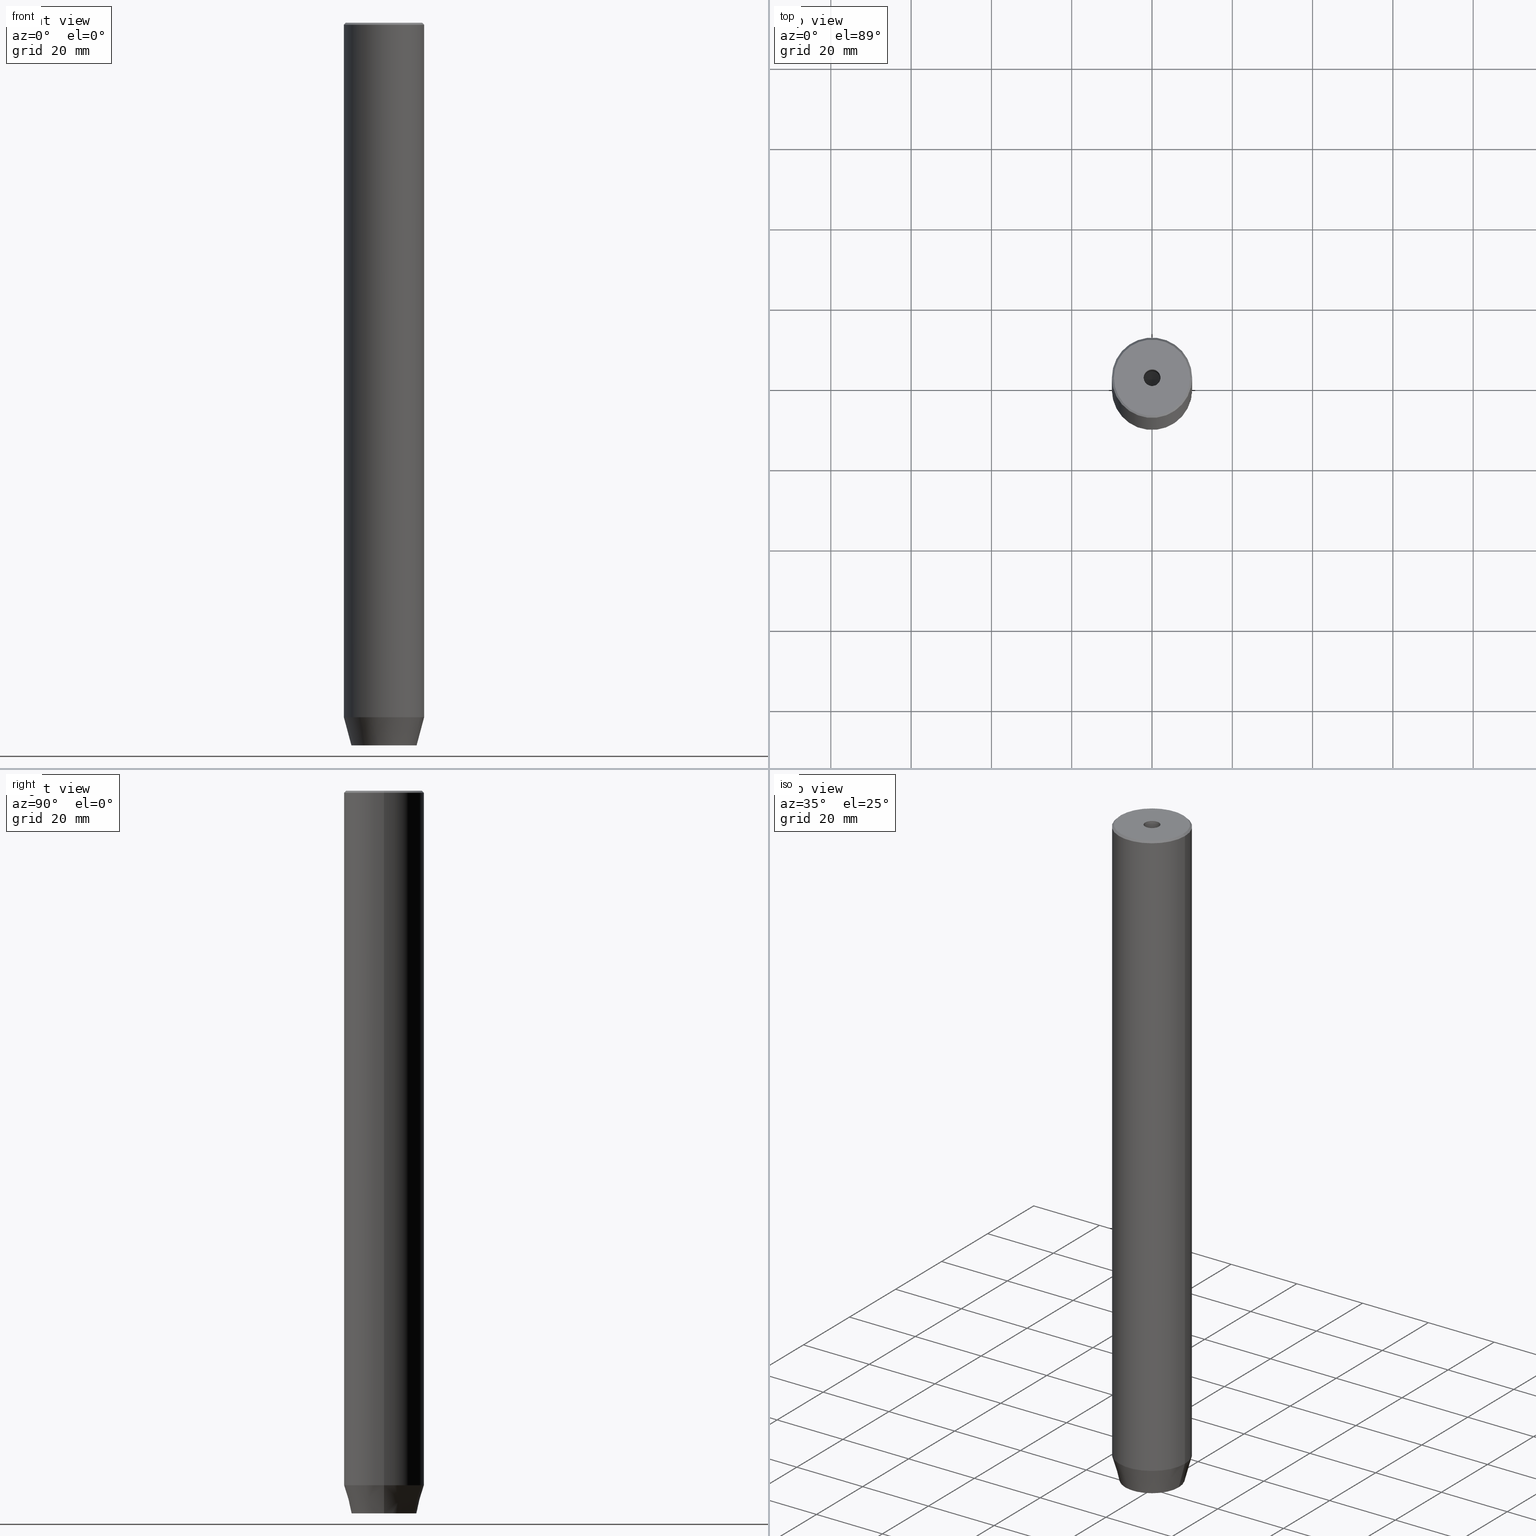
[diagram: canonical four-view strip — front | top / right | iso, engineering-drawing reading convention]
A machine part, canonical four-view strip (front | top / right | iso — engineering-drawing reading convention). The complete STEP part file that produces these views, byte-faithful:
ISO-10303-21;
HEADER;
FILE_DESCRIPTION (( 'STEP AP203' ),
    '1' );
FILE_NAME ('9600.STEP',
    '2024-01-02T19:03:58',
    ( '' ),
    ( '' ),
    'SwSTEP 2.0',
    'SolidWorks 2019',
    '' );
FILE_SCHEMA (( 'CONFIG_CONTROL_DESIGN' ));
ENDSEC;

DATA;
#1 = VERTEX_POINT ( 'NONE', #112 ) ;
#2 = DIRECTION ( 'NONE',  ( -0.000000000000000000, -0.000000000000000000, -1.000000000000000000 ) ) ;
#3 = PLANE ( 'NONE',  #270 ) ;
#4 = VERTEX_POINT ( 'NONE', #150 ) ;
#5 = DIRECTION ( 'NONE',  ( 0.000000000000000000, -1.000000000000000000, 0.000000000000000000 ) ) ;
#6 = CARTESIAN_POINT ( 'NONE',  ( 4.000000000000000000, 2.309401076758503368, -177.1999999999999886 ) ) ;
#7 = VERTEX_POINT ( 'NONE', #407 ) ;
#8 = ORIENTED_EDGE ( 'NONE', *, *, #79, .F. ) ;
#9 = EDGE_LOOP ( 'NONE', ( #374, #303 ) ) ;
#10 = CARTESIAN_POINT ( 'NONE',  ( 0.000000000000000000, 0.000000000000000000, 0.000000000000000000 ) ) ;
#11 = FACE_OUTER_BOUND ( 'NONE', #9, .T. ) ;
#12 = LINE ( 'NONE', #391, #420 ) ;
#13 = AXIS2_PLACEMENT_3D ( 'NONE', #10, #389, #154 ) ;
#14 = DIRECTION ( 'NONE',  ( -0.000000000000000000, -0.000000000000000000, 1.000000000000000000 ) ) ;
#15 = ORIENTED_EDGE ( 'NONE', *, *, #583, .F. ) ;
#16 = CARTESIAN_POINT ( 'NONE',  ( 0.000000000000000000, 0.000000000000000000, -1.990051048614449116E-16 ) ) ;
#17 = ORIENTED_EDGE ( 'NONE', *, *, #261, .T. ) ;
#18 = ADVANCED_FACE ( 'NONE', ( #580 ), #219, .F. ) ;
#19 = FACE_OUTER_BOUND ( 'NONE', #235, .T. ) ;
#20 = ORIENTED_EDGE ( 'NONE', *, *, #93, .F. ) ;
#21 = COORDINATED_UNIVERSAL_TIME_OFFSET ( 1, 0, .AHEAD. ) ;
#22 = DIRECTION ( 'NONE',  ( -0.000000000000000000, -0.000000000000000000, 1.000000000000000000 ) ) ;
#23 = EDGE_LOOP ( 'NONE', ( #419, #431, #485, #15 ) ) ;
#24 = DIRECTION ( 'NONE',  ( -0.000000000000000000, -0.000000000000000000, 1.000000000000000000 ) ) ;
#25 = PERSON_AND_ORGANIZATION ( #45, #406 ) ;
#26 = PLANE ( 'NONE',  #141 ) ;
#27 = AXIS2_PLACEMENT_3D ( 'NONE', #203, #399, #163 ) ;
#28 = VECTOR ( 'NONE', #46, 1000.000000000000114 ) ;
#29 = PERSON_AND_ORGANIZATION_ROLE ( 'creator' ) ;
#30 = EDGE_CURVE ( 'NONE', #92, #304, #586, .T. ) ;
#31 = CARTESIAN_POINT ( 'NONE',  ( -4.000000000000000000, 0.000000000000000000, -177.1999999999999886 ) ) ;
#32 = COORDINATED_UNIVERSAL_TIME_OFFSET ( 1, 0, .AHEAD. ) ;
#33 = DIRECTION ( 'NONE',  ( -0.000000000000000000, -0.000000000000000000, 1.000000000000000000 ) ) ;
#34 = DIRECTION ( 'NONE',  ( -0.000000000000000000, -0.000000000000000000, 1.000000000000000000 ) ) ;
#35 = APPROVAL_ROLE ( '' ) ;
#36 = DIRECTION ( 'NONE',  ( -0.000000000000000000, -0.000000000000000000, -1.000000000000000000 ) ) ;
#37 = VECTOR ( 'NONE', #2, 1000.000000000000000 ) ;
#38 = CARTESIAN_POINT ( 'NONE',  ( -8.124355652982135467, 1.109796706851640556E-15, -180.0000000000000000 ) ) ;
#39 = EDGE_CURVE ( 'NONE', #349, #92, #42, .T. ) ;
#40 =( NAMED_UNIT ( * ) SI_UNIT ( $, .STERADIAN. ) SOLID_ANGLE_UNIT ( ) );
#41 = FACE_OUTER_BOUND ( 'NONE', #288, .T. ) ;
#42 = LINE ( 'NONE', #335, #517 ) ;
#43 = VECTOR ( 'NONE', #322, 1000.000000000000114 ) ;
#44 = ADVANCED_FACE ( 'NONE', ( #59 ), #68, .F. ) ;
#45 = PERSON ( 'NEUR�EN�', 'NEUR�EN�', 'NEUR�EN�', ('NEUR�EN�'), ('NEUR�EN�'), ('NEUR�EN�') ) ;
#46 = DIRECTION ( 'NONE',  ( -0.8660254037844384856, 0.5000000000000002220, 0.000000000000000000 ) ) ;
#47 = LINE ( 'NONE', #53, #175 ) ;
#48 = LINE ( 'NONE', #333, #409 ) ;
#49 = AXIS2_PLACEMENT_3D ( 'NONE', #400, #22, #568 ) ;
#50 = EDGE_CURVE ( 'NONE', #304, #307, #266, .T. ) ;
#51 = FACE_OUTER_BOUND ( 'NONE', #555, .T. ) ;
#52 = DIRECTION ( 'NONE',  ( 0.000000000000000000, 0.000000000000000000, -1.000000000000000000 ) ) ;
#53 = CARTESIAN_POINT ( 'NONE',  ( 2.000000000000000888, -3.464101615137754386, -180.0000000000000000 ) ) ;
#54 = ORIENTED_EDGE ( 'NONE', *, *, #410, .F. ) ;
#55 = ORIENTED_EDGE ( 'NONE', *, *, #168, .T. ) ;
#56 = CARTESIAN_POINT ( 'NONE',  ( 0.000000000000000000, 0.000000000000000000, -180.0000000000000000 ) ) ;
#57 = EDGE_LOOP ( 'NONE', ( #572, #494, #514, #515 ) ) ;
#58 = LINE ( 'NONE', #509, #199 ) ;
#59 = FACE_OUTER_BOUND ( 'NONE', #90, .T. ) ;
#60 = ORIENTED_EDGE ( 'NONE', *, *, #153, .T. ) ;
#61 = ADVANCED_FACE ( 'NONE', ( #348 ), #241, .T. ) ;
#62 = CIRCLE ( 'NONE', #273, 2.099999999999995648 ) ;
#63 = CARTESIAN_POINT ( 'NONE',  ( -2.000000000000000000, 3.464101615137754830, -180.0000000000000000 ) ) ;
#64 = ORIENTED_EDGE ( 'NONE', *, *, #422, .T. ) ;
#65 = DIRECTION ( 'NONE',  ( 1.000000000000000000, 0.000000000000000000, 0.000000000000000000 ) ) ;
#66 = CARTESIAN_POINT ( 'NONE',  ( 0.000000000000000000, 0.000000000000000000, 0.000000000000000000 ) ) ;
#67 = ORIENTED_EDGE ( 'NONE', *, *, #272, .F. ) ;
#68 = PLANE ( 'NONE',  #468 ) ;
#69 = CARTESIAN_POINT ( 'NONE',  ( -4.000000000000000000, 0.000000000000000000, -180.0000000000000000 ) ) ;
#70 = ORIENTED_EDGE ( 'NONE', *, *, #196, .F. ) ;
#71 = APPROVAL_DATE_TIME ( #316, #486 ) ;
#72 = DIRECTION ( 'NONE',  ( -0.000000000000000000, -0.000000000000000000, 1.000000000000000000 ) ) ;
#73 = EDGE_CURVE ( 'NONE', #387, #92, #81, .T. ) ;
#74 = AXIS2_PLACEMENT_3D ( 'NONE', #183, #376, #469 ) ;
#75 = CALENDAR_DATE ( 2024, 2, 1 ) ;
#76 = CALENDAR_DATE ( 2024, 2, 1 ) ;
#77 = PERSON_AND_ORGANIZATION ( #45, #406 ) ;
#78 = APPLICATION_CONTEXT ( 'configuration controlled 3d designs of mechanical parts and assemblies' ) ;
#79 = EDGE_CURVE ( 'NONE', #575, #560, #356, .T. ) ;
#80 = FACE_OUTER_BOUND ( 'NONE', #57, .T. ) ;
#81 = CIRCLE ( 'NONE', #27, 2.099999999999995648 ) ;
#82 = LINE ( 'NONE', #365, #413 ) ;
#83 = CIRCLE ( 'NONE', #109, 10.00000000000000000 ) ;
#84 = CC_DESIGN_PERSON_AND_ORGANIZATION_ASSIGNMENT ( #25, #210, ( #496 ) ) ;
#85 = LINE ( 'NONE', #503, #242 ) ;
#86 = CYLINDRICAL_SURFACE ( 'NONE', #123, 2.099999999999996980 ) ;
#87 = EDGE_CURVE ( 'NONE', #246, #397, #323, .T. ) ;
#88 = DIRECTION ( 'NONE',  ( 1.000000000000000000, 0.000000000000000000, 0.000000000000000000 ) ) ;
#89 = CONICAL_SURFACE ( 'NONE', #411, 9.500000000000008882, 0.7853981633974412846 ) ;
#90 = EDGE_LOOP ( 'NONE', ( #17, #250, #54, #358 ) ) ;
#91 = DIRECTION ( 'NONE',  ( -0.8660254037844385966, -0.4999999999999999445, 0.000000000000000000 ) ) ;
#92 = VERTEX_POINT ( 'NONE', #156 ) ;
#93 = EDGE_CURVE ( 'NONE', #397, #1, #368, .T. ) ;
#94 = ORIENTED_EDGE ( 'NONE', *, *, #583, .T. ) ;
#95 = DIRECTION ( 'NONE',  ( 0.8660254037844387076, 0.5000000000000001110, 0.000000000000000000 ) ) ;
#96 = DIRECTION ( 'NONE',  ( -0.000000000000000000, -0.000000000000000000, 1.000000000000000000 ) ) ;
#97 = VECTOR ( 'NONE', #558, 1000.000000000000000 ) ;
#98 = LINE ( 'NONE', #479, #357 ) ;
#99 = CARTESIAN_POINT ( 'NONE',  ( 0.000000000000000000, 0.000000000000000000, -25.00000000000000000 ) ) ;
#100 = CARTESIAN_POINT ( 'NONE',  ( -9.500000000000008882, 0.000000000000000000, 0.000000000000000000 ) ) ;
#101 = EDGE_CURVE ( 'NONE', #524, #7, #432, .T. ) ;
#102 = EDGE_LOOP ( 'NONE', ( #164, #94, #301, #434 ) ) ;
#103 = CARTESIAN_POINT ( 'NONE',  ( 0.000000000000000000, 0.000000000000000000, 0.000000000000000000 ) ) ;
#104 = LINE ( 'NONE', #244, #551 ) ;
#105 = DIRECTION ( 'NONE',  ( 0.8660254037844384856, 0.5000000000000002220, 0.000000000000000000 ) ) ;
#106 = EDGE_LOOP ( 'NONE', ( #535, #530, #160 ) ) ;
#107 = DIRECTION ( 'NONE',  ( 1.000000000000000000, 0.000000000000000000, 0.000000000000000000 ) ) ;
#108 = DATE_AND_TIME ( #536, #562 ) ;
#109 = AXIS2_PLACEMENT_3D ( 'NONE', #302, #505, #88 ) ;
#110 = CARTESIAN_POINT ( 'NONE',  ( 9.500000000000008882, 1.163414459189986668E-15, 0.000000000000000000 ) ) ;
#111 = FACE_OUTER_BOUND ( 'NONE', #276, .T. ) ;
#112 = CARTESIAN_POINT ( 'NONE',  ( 10.00000000000000000, 0.000000000000000000, -0.4999999999999987232 ) ) ;
#113 = ORIENTED_EDGE ( 'NONE', *, *, #181, .F. ) ;
#114 = CARTESIAN_POINT ( 'NONE',  ( 0.000000000000000000, 0.000000000000000000, 0.000000000000000000 ) ) ;
#115 = VERTEX_POINT ( 'NONE', #556 ) ;
#116 = ORIENTED_EDGE ( 'NONE', *, *, #79, .T. ) ;
#117 = VERTEX_POINT ( 'NONE', #277 ) ;
#118 = ORIENTED_EDGE ( 'NONE', *, *, #136, .F. ) ;
#119 = EDGE_CURVE ( 'NONE', #124, #238, #340, .T. ) ;
#120 = PERSON_AND_ORGANIZATION ( #45, #406 ) ;
#121 = CARTESIAN_POINT ( 'NONE',  ( -10.00000000000000000, 1.224646799147353256E-15, 0.000000000000000000 ) ) ;
#122 =( NAMED_UNIT ( * ) PLANE_ANGLE_UNIT ( ) SI_UNIT ( $, .RADIAN. ) );
#123 = AXIS2_PLACEMENT_3D ( 'NONE', #224, #456, #364 ) ;
#124 = VERTEX_POINT ( 'NONE', #100 ) ;
#125 = LINE ( 'NONE', #444, #470 ) ;
#126 = LINE ( 'NONE', #69, #362 ) ;
#127 = CARTESIAN_POINT ( 'NONE',  ( 4.000000000000000000, 2.309401076758503368, -177.1999999999999886 ) ) ;
#128 = CARTESIAN_POINT ( 'NONE',  ( 2.168404344971008868E-16, 4.618802153517005848, -180.0000000000000000 ) ) ;
#129 = EDGE_CURVE ( 'NONE', #352, #524, #417, .T. ) ;
#130 = DIRECTION ( 'NONE',  ( -0.000000000000000000, -0.000000000000000000, 1.000000000000000000 ) ) ;
#131 = SHAPE_DEFINITION_REPRESENTATION ( #487, #437 ) ;
#132 = FACE_OUTER_BOUND ( 'NONE', #23, .T. ) ;
#133 = APPLICATION_PROTOCOL_DEFINITION ( 'international standard', 'config_control_design', 1994, #78 ) ;
#134 = AXIS2_PLACEMENT_3D ( 'NONE', #398, #72, #162 ) ;
#135 = CARTESIAN_POINT ( 'NONE',  ( 2.099999999999995648, 0.000000000000000000, -25.00000000000000000 ) ) ;
#136 = EDGE_CURVE ( 'NONE', #477, #143, #463, .T. ) ;
#137 = CARTESIAN_POINT ( 'NONE',  ( 0.000000000000000000, 8.124355652982135467, -180.0000000000000000 ) ) ;
#138 = CC_DESIGN_DATE_AND_TIME_ASSIGNMENT ( #108, #360, ( #371 ) ) ;
#139 = CARTESIAN_POINT ( 'NONE',  ( 0.000000000000000000, 0.000000000000000000, 0.000000000000000000 ) ) ;
#140 = ORIENTED_EDGE ( 'NONE', *, *, #153, .F. ) ;
#141 = AXIS2_PLACEMENT_3D ( 'NONE', #308, #525, #279 ) ;
#142 = DIRECTION ( 'NONE',  ( -0.000000000000000000, -0.000000000000000000, -1.000000000000000000 ) ) ;
#143 = VERTEX_POINT ( 'NONE', #467 ) ;
#144 = CC_DESIGN_PERSON_AND_ORGANIZATION_ASSIGNMENT ( #77, #29, ( #247 ) ) ;
#145 = ORIENTED_EDGE ( 'NONE', *, *, #225, .F. ) ;
#146 = CARTESIAN_POINT ( 'NONE',  ( 4.000000000000000000, -2.309401076758502480, -180.0000000000000000 ) ) ;
#147 = FACE_OUTER_BOUND ( 'NONE', #298, .T. ) ;
#148 = PRODUCT_RELATED_PRODUCT_CATEGORY ( 'detail', '', ( #526 ) ) ;
#149 = AXIS2_PLACEMENT_3D ( 'NONE', #328, #344, #188 ) ;
#150 = CARTESIAN_POINT ( 'NONE',  ( 4.000000000000000000, -2.309401076758502480, -177.1999999999999886 ) ) ;
#151 = ORIENTED_EDGE ( 'NONE', *, *, #73, .T. ) ;
#152 = VERTEX_POINT ( 'NONE', #146 ) ;
#153 = EDGE_CURVE ( 'NONE', #115, #117, #549, .T. ) ;
#154 = DIRECTION ( 'NONE',  ( -1.000000000000000000, 0.000000000000000000, 0.000000000000000000 ) ) ;
#155 = EDGE_LOOP ( 'NONE', ( #402, #462, #197, #201 ) ) ;
#156 = CARTESIAN_POINT ( 'NONE',  ( -2.099999999999995648, 2.571758278209436040E-16, -25.00000000000000000 ) ) ;
#157 = DIRECTION ( 'NONE',  ( 0.000000000000000000, 0.000000000000000000, -1.000000000000000000 ) ) ;
#158 = DATE_AND_TIME ( #215, #223 ) ;
#159 = APPLICATION_PROTOCOL_DEFINITION ( 'international standard', 'config_control_design', 1994, #321 ) ;
#160 = ORIENTED_EDGE ( 'NONE', *, *, #511, .T. ) ;
#161 = DIRECTION ( 'NONE',  ( 0.8660254037844385966, -0.5000000000000001110, 0.000000000000000000 ) ) ;
#162 = DIRECTION ( 'NONE',  ( 1.000000000000000000, 0.000000000000000000, 0.000000000000000000 ) ) ;
#163 = DIRECTION ( 'NONE',  ( 1.000000000000000000, 0.000000000000000000, 0.000000000000000000 ) ) ;
#164 = ORIENTED_EDGE ( 'NONE', *, *, #87, .F. ) ;
#165 = VECTOR ( 'NONE', #338, 1000.000000000000000 ) ;
#166 = AXIS2_PLACEMENT_3D ( 'NONE', #232, #198, #91 ) ;
#167 = COORDINATED_UNIVERSAL_TIME_OFFSET ( 1, 0, .AHEAD. ) ;
#168 = EDGE_CURVE ( 'NONE', #477, #472, #553, .T. ) ;
#169 = APPROVAL_PERSON_ORGANIZATION ( #573, #190, #35 ) ;
#170 = PERSON_AND_ORGANIZATION ( #45, #406 ) ;
#171 = CC_DESIGN_PERSON_AND_ORGANIZATION_ASSIGNMENT ( #170, #527, ( #371 ) ) ;
#172 = LINE ( 'NONE', #361, #491 ) ;
#173 = ORIENTED_EDGE ( 'NONE', *, *, #359, .T. ) ;
#174 = DIRECTION ( 'NONE',  ( -0.2588190451025213501, 3.169619151431772337E-17, 0.9659258262890680902 ) ) ;
#175 = VECTOR ( 'NONE', #195, 1000.000000000000114 ) ;
#176 = EDGE_CURVE ( 'NONE', #341, #560, #516, .T. ) ;
#177 = APPROVAL_DATE_TIME ( #262, #289 ) ;
#178 = CARTESIAN_POINT ( 'NONE',  ( 10.00000000000000000, 0.000000000000000000, 0.000000000000000000 ) ) ;
#179 = LINE ( 'NONE', #367, #500 ) ;
#180 = DIRECTION ( 'NONE',  ( 0.000000000000000000, 0.000000000000000000, -1.000000000000000000 ) ) ;
#181 = EDGE_CURVE ( 'NONE', #4, #152, #58, .T. ) ;
#182 = DIRECTION ( 'NONE',  ( -0.000000000000000000, 0.000000000000000000, -1.000000000000000000 ) ) ;
#183 = CARTESIAN_POINT ( 'NONE',  ( 0.000000000000000000, 0.000000000000000000, 0.000000000000000000 ) ) ;
#184 = DIRECTION ( 'NONE',  ( 1.000000000000000000, 0.000000000000000000, 0.000000000000000000 ) ) ;
#185 = ORIENTED_EDGE ( 'NONE', *, *, #412, .F. ) ;
#186 = ADVANCED_FACE ( 'NONE', ( #51 ), #476, .F. ) ;
#187 = CIRCLE ( 'NONE', #49, 8.124355652982135467 ) ;
#188 = DIRECTION ( 'NONE',  ( 1.000000000000000000, 0.000000000000000000, 0.000000000000000000 ) ) ;
#189 = ORIENTED_EDGE ( 'NONE', *, *, #339, .F. ) ;
#190 = APPROVAL ( #443, 'NEUR�EN�' ) ;
#191 = ORIENTED_EDGE ( 'NONE', *, *, #373, .T. ) ;
#192 = ORIENTED_EDGE ( 'NONE', *, *, #384, .T. ) ;
#193 = LINE ( 'NONE', #385, #97 ) ;
#194 = FACE_OUTER_BOUND ( 'NONE', #537, .T. ) ;
#195 = DIRECTION ( 'NONE',  ( -0.8660254037844384856, -0.5000000000000002220, 0.000000000000000000 ) ) ;
#196 = EDGE_CURVE ( 'NONE', #560, #152, #237, .T. ) ;
#197 = ORIENTED_EDGE ( 'NONE', *, *, #50, .T. ) ;
#198 = DIRECTION ( 'NONE',  ( -0.5000000000000000000, 0.8660254037844387076, 0.000000000000000000 ) ) ;
#199 = VECTOR ( 'NONE', #142, 1000.000000000000000 ) ;
#200 = ORIENTED_EDGE ( 'NONE', *, *, #453, .T. ) ;
#201 = ORIENTED_EDGE ( 'NONE', *, *, #366, .F. ) ;
#202 = CARTESIAN_POINT ( 'NONE',  ( -2.099999999999998757, 2.571758278209440478E-16, -1.990051048614449116E-16 ) ) ;
#203 = CARTESIAN_POINT ( 'NONE',  ( 0.000000000000000000, 0.000000000000000000, -25.00000000000000000 ) ) ;
#204 = EDGE_LOOP ( 'NONE', ( #314, #425, #251, #189 ) ) ;
#205 = CARTESIAN_POINT ( 'NONE',  ( 2.099999999999995648, 0.000000000000000000, -25.00000000000000000 ) ) ;
#206 = CARTESIAN_POINT ( 'NONE',  ( 0.000000000000000000, 0.000000000000000000, -177.1999999999999886 ) ) ;
#207 = EDGE_CURVE ( 'NONE', #115, #263, #193, .T. ) ;
#208 = AXIS2_PLACEMENT_3D ( 'NONE', #31, #499, #416 ) ;
#209 = AXIS2_PLACEMENT_3D ( 'NONE', #268, #180, #495 ) ;
#210 = PERSON_AND_ORGANIZATION_ROLE ( 'design_supplier' ) ;
#211 = COORDINATED_UNIVERSAL_TIME_OFFSET ( 1, 0, .AHEAD. ) ;
#212 = APPROVAL_STATUS ( 'not_yet_approved' ) ;
#213 = ADVANCED_FACE ( 'NONE', ( #240 ), #227, .T. ) ;
#214 = DIRECTION ( 'NONE',  ( -1.000000000000000000, 0.000000000000000000, -0.000000000000000000 ) ) ;
#215 = CALENDAR_DATE ( 2024, 2, 1 ) ;
#216 = DIRECTION ( 'NONE',  ( -0.000000000000000000, -0.000000000000000000, 1.000000000000000000 ) ) ;
#217 = VECTOR ( 'NONE', #130, 1000.000000000000000 ) ;
#218 = LINE ( 'NONE', #135, #43 ) ;
#219 = PLANE ( 'NONE',  #208 ) ;
#220 = CARTESIAN_POINT ( 'NONE',  ( 0.000000000000000000, 0.000000000000000000, -173.0000000000000000 ) ) ;
#221 = ADVANCED_FACE ( 'NONE', ( #561 ), #347, .F. ) ;
#222 = AXIS2_PLACEMENT_3D ( 'NONE', #372, #414, #182 ) ;
#223 = LOCAL_TIME ( 20, 3, 58.00000000000000000, #21 ) ;
#224 = CARTESIAN_POINT ( 'NONE',  ( 0.000000000000000000, 0.000000000000000000, 0.000000000000000000 ) ) ;
#225 = EDGE_CURVE ( 'NONE', #575, #4, #12, .T. ) ;
#226 = CARTESIAN_POINT ( 'NONE',  ( 8.124355652982135467, 0.000000000000000000, -180.0000000000000000 ) ) ;
#227 = CONICAL_SURFACE ( 'NONE', #13, 9.500000000000008882, 0.7853981633974412846 ) ;
#228 = CARTESIAN_POINT ( 'NONE',  ( 10.00000000000000000, 0.000000000000000000, -173.0000000000000000 ) ) ;
#229 = CARTESIAN_POINT ( 'NONE',  ( 0.000000000000000000, 0.000000000000000000, -173.0000000000000000 ) ) ;
#230 = PERSON_AND_ORGANIZATION ( #45, #406 ) ;
#231 =( GEOMETRIC_REPRESENTATION_CONTEXT ( 3 ) GLOBAL_UNCERTAINTY_ASSIGNED_CONTEXT ( ( #454 ) ) GLOBAL_UNIT_ASSIGNED_CONTEXT ( ( #375, #122, #40 ) ) REPRESENTATION_CONTEXT ( 'NONE', 'WORKASPACE' ) );
#232 = CARTESIAN_POINT ( 'NONE',  ( -2.000000000000000000, 3.464101615137754830, -177.1999999999999886 ) ) ;
#233 = DIRECTION ( 'NONE',  ( 1.000000000000000000, 0.000000000000000000, 0.000000000000000000 ) ) ;
#234 = EDGE_CURVE ( 'NONE', #143, #351, #98, .T. ) ;
#235 = EDGE_LOOP ( 'NONE', ( #60, #192, #305, #519, #452, #200 ) ) ;
#236 = EDGE_LOOP ( 'NONE', ( #567, #430, #118, #55 ) ) ;
#237 = LINE ( 'NONE', #428, #446 ) ;
#238 = VERTEX_POINT ( 'NONE', #429 ) ;
#239 = DIRECTION ( 'NONE',  ( 0.5000000000000001110, 0.8660254037844385966, -0.000000000000000000 ) ) ;
#240 = FACE_OUTER_BOUND ( 'NONE', #204, .T. ) ;
#241 = CONICAL_SURFACE ( 'NONE', #403, 10.00000000000000000, 0.2617993877991500740 ) ;
#242 = VECTOR ( 'NONE', #174, 1000.000000000000000 ) ;
#243 = CYLINDRICAL_SURFACE ( 'NONE', #369, 10.00000000000000000 ) ;
#244 = CARTESIAN_POINT ( 'NONE',  ( -2.000000000000000888, -3.464101615137754386, -180.0000000000000000 ) ) ;
#245 = CC_DESIGN_SECURITY_CLASSIFICATION ( #371, ( #496 ) ) ;
#246 = VERTEX_POINT ( 'NONE', #350 ) ;
#247 = PRODUCT_DEFINITION ( 'NEZN�M�', '', #496, #252 ) ;
#248 = DIRECTION ( 'NONE',  ( -0.5000000000000003331, -0.8660254037844385966, 0.000000000000000000 ) ) ;
#249 = FACE_OUTER_BOUND ( 'NONE', #102, .T. ) ;
#250 = ORIENTED_EDGE ( 'NONE', *, *, #168, .F. ) ;
#251 = ORIENTED_EDGE ( 'NONE', *, *, #325, .T. ) ;
#252 = DESIGN_CONTEXT ( 'detailed design', #78, 'design' ) ;
#253 = AXIS2_PLACEMENT_3D ( 'NONE', #285, #157, #107 ) ;
#254 = ORIENTED_EDGE ( 'NONE', *, *, #176, .T. ) ;
#255 = AXIS2_PLACEMENT_3D ( 'NONE', #449, #239, #571 ) ;
#256 = DATE_AND_TIME ( #76, #533 ) ;
#257 = EDGE_LOOP ( 'NONE', ( #254, #8, #346, #332 ) ) ;
#258 = CARTESIAN_POINT ( 'NONE',  ( -10.00000000000000000, 1.224646799147353256E-15, -0.4999999999999987232 ) ) ;
#259 = DIRECTION ( 'NONE',  ( -1.000000000000000000, 0.000000000000000000, -0.000000000000000000 ) ) ;
#260 = DIRECTION ( 'NONE',  ( 1.000000000000000000, 0.000000000000000000, 0.000000000000000000 ) ) ;
#261 = EDGE_CURVE ( 'NONE', #152, #472, #47, .T. ) ;
#262 = DATE_AND_TIME ( #75, #290 ) ;
#263 = VERTEX_POINT ( 'NONE', #386 ) ;
#264 = DATE_TIME_ROLE ( 'creation_date' ) ;
#265 = CARTESIAN_POINT ( 'NONE',  ( 4.336808689942017736E-16, -4.618802153517006737, -180.0000000000000000 ) ) ;
#266 = CIRCLE ( 'NONE', #550, 2.099999999999998757 ) ;
#267 = CALENDAR_DATE ( 2024, 2, 1 ) ;
#268 = CARTESIAN_POINT ( 'NONE',  ( 0.000000000000000000, 0.000000000000000000, -0.4999999999999987232 ) ) ;
#269 = CARTESIAN_POINT ( 'NONE',  ( 0.000000000000000000, 0.000000000000000000, -25.00000000000000000 ) ) ;
#270 = AXIS2_PLACEMENT_3D ( 'NONE', #137, #52, #214 ) ;
#271 = DIRECTION ( 'NONE',  ( -0.000000000000000000, -0.000000000000000000, 1.000000000000000000 ) ) ;
#272 = EDGE_CURVE ( 'NONE', #472, #351, #104, .T. ) ;
#273 = AXIS2_PLACEMENT_3D ( 'NONE', #99, #343, #475 ) ;
#274 = DIRECTION ( 'NONE',  ( 0.8660254037844384856, -0.5000000000000002220, 0.000000000000000000 ) ) ;
#275 = EDGE_CURVE ( 'NONE', #351, #263, #126, .T. ) ;
#276 = EDGE_LOOP ( 'NONE', ( #395, #421, #151 ) ) ;
#277 = CARTESIAN_POINT ( 'NONE',  ( 0.000000000000000000, 4.618802153517006737, -177.1999999999999886 ) ) ;
#278 = CARTESIAN_POINT ( 'NONE',  ( 4.336808689942017736E-16, -4.618802153517006737, -177.1999999999999886 ) ) ;
#279 = DIRECTION ( 'NONE',  ( 1.000000000000000000, 0.000000000000000000, 0.000000000000000000 ) ) ;
#280 = DIRECTION ( 'NONE',  ( 0.000000000000000000, -1.000000000000000000, 0.000000000000000000 ) ) ;
#281 = ADVANCED_FACE ( 'NONE', ( #249 ), #243, .T. ) ;
#282 = FACE_OUTER_BOUND ( 'NONE', #552, .T. ) ;
#283 = CARTESIAN_POINT ( 'NONE',  ( 2.000000000000000444, 3.464101615137754386, -180.0000000000000000 ) ) ;
#284 = DIRECTION ( 'NONE',  ( -1.000000000000000000, 0.000000000000000000, 0.000000000000000000 ) ) ;
#285 = CARTESIAN_POINT ( 'NONE',  ( 0.000000000000000000, 0.000000000000000000, -0.4999999999999987232 ) ) ;
#286 = DIRECTION ( 'NONE',  ( -0.000000000000000000, -0.000000000000000000, -1.000000000000000000 ) ) ;
#287 = ORIENTED_EDGE ( 'NONE', *, *, #275, .F. ) ;
#288 = EDGE_LOOP ( 'NONE', ( #294, #113, #145, #116 ) ) ;
#289 = APPROVAL ( #312, 'NEUR�EN�' ) ;
#290 = LOCAL_TIME ( 20, 3, 58.00000000000000000, #32 ) ;
#291 = CARTESIAN_POINT ( 'NONE',  ( 4.000000000000000000, 2.309401076758503368, -180.0000000000000000 ) ) ;
#292 = ORIENTED_EDGE ( 'NONE', *, *, #309, .F. ) ;
#293 = ORIENTED_EDGE ( 'NONE', *, *, #50, .F. ) ;
#294 = ORIENTED_EDGE ( 'NONE', *, *, #196, .T. ) ;
#295 = DIRECTION ( 'NONE',  ( 1.000000000000000000, 0.000000000000000000, 0.000000000000000000 ) ) ;
#296 = FACE_OUTER_BOUND ( 'NONE', #257, .T. ) ;
#297 = VECTOR ( 'NONE', #95, 999.9999999999998863 ) ;
#298 = EDGE_LOOP ( 'NONE', ( #579, #513 ) ) ;
#299 = SECURITY_CLASSIFICATION_LEVEL ( 'unclassified' ) ;
#300 = ADVANCED_FACE ( 'NONE', ( #296 ), #442, .F. ) ;
#301 = ORIENTED_EDGE ( 'NONE', *, *, #309, .T. ) ;
#302 = CARTESIAN_POINT ( 'NONE',  ( 0.000000000000000000, 0.000000000000000000, -173.0000000000000000 ) ) ;
#303 = ORIENTED_EDGE ( 'NONE', *, *, #393, .T. ) ;
#304 = VERTEX_POINT ( 'NONE', #202 ) ;
#305 = ORIENTED_EDGE ( 'NONE', *, *, #225, .T. ) ;
#306 = DIRECTION ( 'NONE',  ( 0.000000000000000000, 0.000000000000000000, -1.000000000000000000 ) ) ;
#307 = VERTEX_POINT ( 'NONE', #529 ) ;
#308 = CARTESIAN_POINT ( 'NONE',  ( 0.000000000000000000, 0.000000000000000000, 0.000000000000000000 ) ) ;
#309 = EDGE_CURVE ( 'NONE', #7, #1, #498, .T. ) ;
#310 = CLOSED_SHELL ( 'NONE', ( #221, #473, #578, #61, #531, #585, #566, #281, #458, #213, #186, #18, #497, #44, #447, #300, #548, #543, #465 ) ) ;
#311 = VECTOR ( 'NONE', #565, 999.9999999999998863 ) ;
#312 = APPROVAL_STATUS ( 'not_yet_approved' ) ;
#313 = DIRECTION ( 'NONE',  ( -0.000000000000000000, -0.000000000000000000, 1.000000000000000000 ) ) ;
#314 = ORIENTED_EDGE ( 'NONE', *, *, #373, .F. ) ;
#315 = CC_DESIGN_APPROVAL ( #289, ( #371 ) ) ;
#316 = DATE_AND_TIME ( #267, #450 ) ;
#317 = CARTESIAN_POINT ( 'NONE',  ( -6.432287649943602629E-15, 0.000000000000000000, -26.26180729995787999 ) ) ;
#318 = AXIS2_PLACEMENT_3D ( 'NONE', #269, #216, #184 ) ;
#319 = FACE_OUTER_BOUND ( 'NONE', #106, .T. ) ;
#320 = CC_DESIGN_PERSON_AND_ORGANIZATION_ASSIGNMENT ( #230, #427, ( #526 ) ) ;
#321 = APPLICATION_CONTEXT ( 'configuration controlled 3d designs of mechanical parts and assemblies' ) ;
#322 = DIRECTION ( 'NONE',  ( 0.8571673007021108903, 0.000000000000000000, 0.5150380749100565980 ) ) ;
#323 = LINE ( 'NONE', #121, #326 ) ;
#324 = DIRECTION ( 'NONE',  ( -0.8571673007021108903, 1.049727191138616847E-16, 0.5150380749100565980 ) ) ;
#325 = EDGE_CURVE ( 'NONE', #124, #397, #82, .T. ) ;
#326 = VECTOR ( 'NONE', #313, 1000.000000000000000 ) ;
#327 = AXIS2_PLACEMENT_3D ( 'NONE', #206, #306, #259 ) ;
#328 = CARTESIAN_POINT ( 'NONE',  ( 0.000000000000000000, 0.000000000000000000, 0.000000000000000000 ) ) ;
#329 = CC_DESIGN_PERSON_AND_ORGANIZATION_ASSIGNMENT ( #576, #451, ( #496 ) ) ;
#330 = FACE_OUTER_BOUND ( 'NONE', #236, .T. ) ;
#331 = ORIENTED_EDGE ( 'NONE', *, *, #207, .F. ) ;
#332 = ORIENTED_EDGE ( 'NONE', *, *, #520, .T. ) ;
#333 = CARTESIAN_POINT ( 'NONE',  ( 0.000000000000000000, 4.618802153517006737, -177.1999999999999886 ) ) ;
#334 = DIRECTION ( 'NONE',  ( -0.000000000000000000, -0.000000000000000000, 1.000000000000000000 ) ) ;
#335 = CARTESIAN_POINT ( 'NONE',  ( -2.099999999999995648, 2.571758278209436040E-16, -25.00000000000000000 ) ) ;
#336 = MECHANICAL_CONTEXT ( 'NONE', #321, 'mechanical' ) ;
#337 = ORIENTED_EDGE ( 'NONE', *, *, #261, .F. ) ;
#338 = DIRECTION ( 'NONE',  ( 0.2588190451025213501, 0.000000000000000000, 0.9659258262890680902 ) ) ;
#339 = EDGE_CURVE ( 'NONE', #1, #397, #501, .T. ) ;
#340 = CIRCLE ( 'NONE', #149, 9.500000000000008882 ) ;
#341 = VERTEX_POINT ( 'NONE', #128 ) ;
#342 = VECTOR ( 'NONE', #532, 999.9999999999998863 ) ;
#343 = DIRECTION ( 'NONE',  ( -0.000000000000000000, -0.000000000000000000, 1.000000000000000000 ) ) ;
#344 = DIRECTION ( 'NONE',  ( -0.000000000000000000, -0.000000000000000000, 1.000000000000000000 ) ) ;
#345 = CARTESIAN_POINT ( 'NONE',  ( 0.000000000000000000, 0.000000000000000000, -173.0000000000000000 ) ) ;
#346 = ORIENTED_EDGE ( 'NONE', *, *, #384, .F. ) ;
#347 = CYLINDRICAL_SURFACE ( 'NONE', #74, 2.099999999999996980 ) ;
#348 = FACE_OUTER_BOUND ( 'NONE', #466, .T. ) ;
#349 = VERTEX_POINT ( 'NONE', #317 ) ;
#350 = CARTESIAN_POINT ( 'NONE',  ( -10.00000000000000000, 1.224646799147353256E-15, -173.0000000000000000 ) ) ;
#351 = VERTEX_POINT ( 'NONE', #370 ) ;
#352 = VERTEX_POINT ( 'NONE', #38 ) ;
#353 = DIRECTION ( 'NONE',  ( -0.000000000000000000, -0.000000000000000000, -1.000000000000000000 ) ) ;
#354 = DIRECTION ( 'NONE',  ( 0.5000000000000003331, -0.8660254037844385966, 0.000000000000000000 ) ) ;
#355 = EDGE_CURVE ( 'NONE', #349, #387, #218, .T. ) ;
#356 = LINE ( 'NONE', #127, #418 ) ;
#357 = VECTOR ( 'NONE', #286, 1000.000000000000000 ) ;
#358 = ORIENTED_EDGE ( 'NONE', *, *, #181, .T. ) ;
#359 = EDGE_CURVE ( 'NONE', #352, #246, #85, .T. ) ;
#360 = DATE_TIME_ROLE ( 'classification_date' ) ;
#361 = CARTESIAN_POINT ( 'NONE',  ( 2.000000000000000888, -3.464101615137754386, -177.1999999999999886 ) ) ;
#362 = VECTOR ( 'NONE', #534, 1000.000000000000000 ) ;
#363 = DIRECTION ( 'NONE',  ( 1.000000000000000000, 0.000000000000000000, 0.000000000000000000 ) ) ;
#364 = DIRECTION ( 'NONE',  ( 1.000000000000000000, 0.000000000000000000, 0.000000000000000000 ) ) ;
#365 = CARTESIAN_POINT ( 'NONE',  ( -9.500000000000008882, 0.000000000000000000, 0.000000000000000000 ) ) ;
#366 = EDGE_CURVE ( 'NONE', #387, #307, #125, .T. ) ;
#367 = CARTESIAN_POINT ( 'NONE',  ( -4.000000000000000000, 0.000000000000000000, -177.1999999999999886 ) ) ;
#368 = CIRCLE ( 'NONE', #253, 10.00000000000000000 ) ;
#369 = AXIS2_PLACEMENT_3D ( 'NONE', #66, #14, #260 ) ;
#370 = CARTESIAN_POINT ( 'NONE',  ( -4.000000000000000000, -2.309401076758503368, -180.0000000000000000 ) ) ;
#371 = SECURITY_CLASSIFICATION ( '', '', #299 ) ;
#372 = CARTESIAN_POINT ( 'NONE',  ( 4.000000000000000000, 0.000000000000000000, -177.1999999999999886 ) ) ;
#373 = EDGE_CURVE ( 'NONE', #238, #1, #396, .T. ) ;
#374 = ORIENTED_EDGE ( 'NONE', *, *, #119, .T. ) ;
#375 =( LENGTH_UNIT ( ) NAMED_UNIT ( * ) SI_UNIT ( .MILLI., .METRE. ) );
#376 = DIRECTION ( 'NONE',  ( -0.000000000000000000, -0.000000000000000000, 1.000000000000000000 ) ) ;
#377 = CARTESIAN_POINT ( 'NONE',  ( 4.336808689942017736E-16, -4.618802153517006737, -177.1999999999999886 ) ) ;
#378 = DIRECTION ( 'NONE',  ( 1.000000000000000000, 0.000000000000000000, 0.000000000000000000 ) ) ;
#379 = AXIS2_PLACEMENT_3D ( 'NONE', #114, #401, #439 ) ;
#380 = DIRECTION ( 'NONE',  ( 1.000000000000000000, 0.000000000000000000, 0.000000000000000000 ) ) ;
#381 = ORIENTED_EDGE ( 'NONE', *, *, #275, .T. ) ;
#382 = ORIENTED_EDGE ( 'NONE', *, *, #207, .T. ) ;
#383 = CYLINDRICAL_SURFACE ( 'NONE', #581, 10.00000000000000000 ) ;
#384 = EDGE_CURVE ( 'NONE', #117, #575, #577, .T. ) ;
#385 = CARTESIAN_POINT ( 'NONE',  ( -4.000000000000000000, 2.309401076758503368, -177.1999999999999886 ) ) ;
#386 = CARTESIAN_POINT ( 'NONE',  ( -4.000000000000000000, 2.309401076758503368, -180.0000000000000000 ) ) ;
#387 = VERTEX_POINT ( 'NONE', #205 ) ;
#388 = EDGE_LOOP ( 'NONE', ( #381, #331, #488, #481 ) ) ;
#389 = DIRECTION ( 'NONE',  ( 0.000000000000000000, 0.000000000000000000, -1.000000000000000000 ) ) ;
#390 = CARTESIAN_POINT ( 'NONE',  ( 0.000000000000000000, 0.000000000000000000, -1.990051048614449116E-16 ) ) ;
#391 = CARTESIAN_POINT ( 'NONE',  ( 4.000000000000000000, 0.000000000000000000, -177.1999999999999886 ) ) ;
#392 = ORIENTED_EDGE ( 'NONE', *, *, #393, .F. ) ;
#393 = EDGE_CURVE ( 'NONE', #238, #124, #508, .T. ) ;
#394 = EDGE_LOOP ( 'NONE', ( #185, #293 ) ) ;
#395 = ORIENTED_EDGE ( 'NONE', *, *, #39, .F. ) ;
#396 = LINE ( 'NONE', #110, #342 ) ;
#397 = VERTEX_POINT ( 'NONE', #258 ) ;
#398 = CARTESIAN_POINT ( 'NONE',  ( 0.000000000000000000, 0.000000000000000000, -25.00000000000000000 ) ) ;
#399 = DIRECTION ( 'NONE',  ( -0.000000000000000000, -0.000000000000000000, 1.000000000000000000 ) ) ;
#400 = CARTESIAN_POINT ( 'NONE',  ( 0.000000000000000000, 0.000000000000000000, -180.0000000000000000 ) ) ;
#401 = DIRECTION ( 'NONE',  ( -0.000000000000000000, -0.000000000000000000, 1.000000000000000000 ) ) ;
#402 = ORIENTED_EDGE ( 'NONE', *, *, #511, .F. ) ;
#403 = AXIS2_PLACEMENT_3D ( 'NONE', #345, #436, #65 ) ;
#404 = VECTOR ( 'NONE', #471, 1000.000000000000000 ) ;
#405 = DIRECTION ( 'NONE',  ( -0.000000000000000000, -0.000000000000000000, 1.000000000000000000 ) ) ;
#406 = ORGANIZATION ( 'NEUR�EN�', 'NEUR�EN�', '' ) ;
#407 = CARTESIAN_POINT ( 'NONE',  ( 10.00000000000000000, 0.000000000000000000, -173.0000000000000000 ) ) ;
#408 = DIRECTION ( 'NONE',  ( -0.7071067811865425767, 0.000000000000000000, -0.7071067811865525687 ) ) ;
#409 = VECTOR ( 'NONE', #353, 1000.000000000000000 ) ;
#410 = EDGE_CURVE ( 'NONE', #4, #477, #172, .T. ) ;
#411 = AXIS2_PLACEMENT_3D ( 'NONE', #139, #461, #284 ) ;
#412 = EDGE_CURVE ( 'NONE', #307, #304, #518, .T. ) ;
#413 = VECTOR ( 'NONE', #408, 999.9999999999998863 ) ;
#414 = DIRECTION ( 'NONE',  ( 1.000000000000000000, 0.000000000000000000, -0.000000000000000000 ) ) ;
#415 = ORIENTED_EDGE ( 'NONE', *, *, #422, .F. ) ;
#416 = DIRECTION ( 'NONE',  ( 0.000000000000000000, 0.000000000000000000, 1.000000000000000000 ) ) ;
#417 = CIRCLE ( 'NONE', #587, 8.124355652982135467 ) ;
#418 = VECTOR ( 'NONE', #36, 1000.000000000000000 ) ;
#419 = ORIENTED_EDGE ( 'NONE', *, *, #359, .F. ) ;
#420 = VECTOR ( 'NONE', #280, 1000.000000000000000 ) ;
#421 = ORIENTED_EDGE ( 'NONE', *, *, #355, .T. ) ;
#422 = EDGE_CURVE ( 'NONE', #263, #341, #480, .T. ) ;
#423 = CARTESIAN_POINT ( 'NONE',  ( -2.000000000000000000, 3.464101615137754830, -177.1999999999999886 ) ) ;
#424 = DIRECTION ( 'NONE',  ( 1.000000000000000000, 0.000000000000000000, 0.000000000000000000 ) ) ;
#425 = ORIENTED_EDGE ( 'NONE', *, *, #119, .F. ) ;
#426 = CARTESIAN_POINT ( 'NONE',  ( 0.000000000000000000, 0.000000000000000000, 0.000000000000000000 ) ) ;
#427 = PERSON_AND_ORGANIZATION_ROLE ( 'design_owner' ) ;
#428 = CARTESIAN_POINT ( 'NONE',  ( 4.000000000000000000, 0.000000000000000000, -180.0000000000000000 ) ) ;
#429 = CARTESIAN_POINT ( 'NONE',  ( 9.500000000000008882, 1.194030629168669864E-15, 0.000000000000000000 ) ) ;
#430 = ORIENTED_EDGE ( 'NONE', *, *, #234, .F. ) ;
#431 = ORIENTED_EDGE ( 'NONE', *, *, #129, .T. ) ;
#432 = LINE ( 'NONE', #228, #165 ) ;
#433 = EDGE_CURVE ( 'NONE', #7, #246, #83, .T. ) ;
#434 = ORIENTED_EDGE ( 'NONE', *, *, #339, .T. ) ;
#435 = CONICAL_SURFACE ( 'NONE', #134, 2.099999999999995648, 1.029744258676651647 ) ;
#436 = DIRECTION ( 'NONE',  ( -0.000000000000000000, -0.000000000000000000, 1.000000000000000000 ) ) ;
#437 = ADVANCED_BREP_SHAPE_REPRESENTATION ( '9600', ( #506, #574 ), #231 ) ;
#438 = ORIENTED_EDGE ( 'NONE', *, *, #93, .T. ) ;
#439 = DIRECTION ( 'NONE',  ( 1.000000000000000000, 0.000000000000000000, 0.000000000000000000 ) ) ;
#440 = EDGE_LOOP ( 'NONE', ( #415, #287, #67, #337, #70, #460 ) ) ;
#441 = CC_DESIGN_APPROVAL ( #486, ( #247 ) ) ;
#442 = PLANE ( 'NONE',  #255 ) ;
#443 = APPROVAL_STATUS ( 'not_yet_approved' ) ;
#444 = CARTESIAN_POINT ( 'NONE',  ( 2.099999999999996980, 0.000000000000000000, 0.000000000000000000 ) ) ;
#445 = APPROVAL_DATE_TIME ( #158, #190 ) ;
#446 = VECTOR ( 'NONE', #5, 1000.000000000000000 ) ;
#447 = ADVANCED_FACE ( 'NONE', ( #41 ), #582, .F. ) ;
#448 = PERSON_AND_ORGANIZATION ( #45, #406 ) ;
#449 = CARTESIAN_POINT ( 'NONE',  ( 2.000000000000000444, 3.464101615137754386, -177.1999999999999886 ) ) ;
#450 = LOCAL_TIME ( 20, 3, 58.00000000000000000, #541 ) ;
#451 = PERSON_AND_ORGANIZATION_ROLE ( 'creator' ) ;
#452 = ORIENTED_EDGE ( 'NONE', *, *, #136, .T. ) ;
#453 = EDGE_CURVE ( 'NONE', #143, #115, #179, .T. ) ;
#454 = UNCERTAINTY_MEASURE_WITH_UNIT (LENGTH_MEASURE( 1.000000000000000082E-05 ), #375, 'distance_accuracy_value', 'NONE');
#455 = CONICAL_SURFACE ( 'NONE', #584, 10.00000000000000000, 0.2617993877991500740 ) ;
#456 = DIRECTION ( 'NONE',  ( -0.000000000000000000, -0.000000000000000000, 1.000000000000000000 ) ) ;
#457 = AXIS2_PLACEMENT_3D ( 'NONE', #229, #464, #424 ) ;
#458 = ADVANCED_FACE ( 'NONE', ( #132 ), #455, .T. ) ;
#459 = VECTOR ( 'NONE', #161, 1000.000000000000000 ) ;
#460 = ORIENTED_EDGE ( 'NONE', *, *, #176, .F. ) ;
#461 = DIRECTION ( 'NONE',  ( 0.000000000000000000, 0.000000000000000000, -1.000000000000000000 ) ) ;
#462 = ORIENTED_EDGE ( 'NONE', *, *, #30, .T. ) ;
#463 = LINE ( 'NONE', #521, #28 ) ;
#464 = DIRECTION ( 'NONE',  ( -0.000000000000000000, -0.000000000000000000, 1.000000000000000000 ) ) ;
#465 = ADVANCED_FACE ( 'NONE', ( #80 ), #86, .F. ) ;
#466 = EDGE_LOOP ( 'NONE', ( #569, #173, #484, #539 ) ) ;
#467 = CARTESIAN_POINT ( 'NONE',  ( -4.000000000000000000, -2.309401076758503368, -177.1999999999999886 ) ) ;
#468 = AXIS2_PLACEMENT_3D ( 'NONE', #522, #354, #105 ) ;
#469 = DIRECTION ( 'NONE',  ( 1.000000000000000000, 0.000000000000000000, 0.000000000000000000 ) ) ;
#470 = VECTOR ( 'NONE', #24, 1000.000000000000000 ) ;
#471 = DIRECTION ( 'NONE',  ( 0.8660254037844385966, -0.5000000000000001110, 0.000000000000000000 ) ) ;
#472 = VERTEX_POINT ( 'NONE', #265 ) ;
#473 = ADVANCED_FACE ( 'NONE', ( #319 ), #570, .F. ) ;
#474 = ORIENTED_EDGE ( 'NONE', *, *, #520, .F. ) ;
#475 = DIRECTION ( 'NONE',  ( 1.000000000000000000, 0.000000000000000000, 0.000000000000000000 ) ) ;
#476 = PLANE ( 'NONE',  #166 ) ;
#477 = VERTEX_POINT ( 'NONE', #377 ) ;
#478 = DIRECTION ( 'NONE',  ( 0.000000000000000000, 0.000000000000000000, 1.000000000000000000 ) ) ;
#479 = CARTESIAN_POINT ( 'NONE',  ( -4.000000000000000000, -2.309401076758503368, -177.1999999999999886 ) ) ;
#480 = LINE ( 'NONE', #63, #311 ) ;
#481 = ORIENTED_EDGE ( 'NONE', *, *, #234, .T. ) ;
#482 = CARTESIAN_POINT ( 'NONE',  ( -2.000000000000000888, -3.464101615137754386, -177.1999999999999886 ) ) ;
#483 = DIRECTION ( 'NONE',  ( -0.8660254037844384856, 0.5000000000000002220, 0.000000000000000000 ) ) ;
#484 = ORIENTED_EDGE ( 'NONE', *, *, #433, .F. ) ;
#485 = ORIENTED_EDGE ( 'NONE', *, *, #101, .T. ) ;
#486 = APPROVAL ( #212, 'NEUR�EN�' ) ;
#487 = PRODUCT_DEFINITION_SHAPE ( 'NONE', 'NONE',  #247 ) ;
#488 = ORIENTED_EDGE ( 'NONE', *, *, #453, .F. ) ;
#489 = FACE_BOUND ( 'NONE', #394, .T. ) ;
#490 = CARTESIAN_POINT ( 'NONE',  ( 2.000000000000000444, 3.464101615137754386, -177.1999999999999886 ) ) ;
#491 = VECTOR ( 'NONE', #493, 1000.000000000000114 ) ;
#492 = APPROVAL_ROLE ( '' ) ;
#493 = DIRECTION ( 'NONE',  ( -0.8660254037844384856, -0.5000000000000002220, 0.000000000000000000 ) ) ;
#494 = ORIENTED_EDGE ( 'NONE', *, *, #73, .F. ) ;
#495 = DIRECTION ( 'NONE',  ( 1.000000000000000000, 0.000000000000000000, 0.000000000000000000 ) ) ;
#496 = PRODUCT_DEFINITION_FORMATION_WITH_SPECIFIED_SOURCE ( 'LIBOVOLN�', '', #526, .NOT_KNOWN. ) ;
#497 = ADVANCED_FACE ( 'NONE', ( #330 ), #510, .F. ) ;
#498 = LINE ( 'NONE', #178, #217 ) ;
#499 = DIRECTION ( 'NONE',  ( -1.000000000000000000, 0.000000000000000000, 0.000000000000000000 ) ) ;
#500 = VECTOR ( 'NONE', #502, 1000.000000000000000 ) ;
#501 = CIRCLE ( 'NONE', #209, 10.00000000000000000 ) ;
#502 = DIRECTION ( 'NONE',  ( 0.000000000000000000, 1.000000000000000000, 0.000000000000000000 ) ) ;
#503 = CARTESIAN_POINT ( 'NONE',  ( -10.00000000000000000, 1.224646799147353256E-15, -173.0000000000000000 ) ) ;
#504 = CC_DESIGN_APPROVAL ( #190, ( #496 ) ) ;
#505 = DIRECTION ( 'NONE',  ( -0.000000000000000000, -0.000000000000000000, 1.000000000000000000 ) ) ;
#506 = MANIFOLD_SOLID_BREP ( 'Vrt�k z�vitn�ku pro M5 z�vit1', #310 ) ;
#507 = VECTOR ( 'NONE', #96, 1000.000000000000000 ) ;
#508 = CIRCLE ( 'NONE', #379, 9.500000000000008882 ) ;
#509 = CARTESIAN_POINT ( 'NONE',  ( 4.000000000000000000, -2.309401076758502480, -177.1999999999999886 ) ) ;
#510 = PLANE ( 'NONE',  #544 ) ;
#511 = EDGE_CURVE ( 'NONE', #92, #387, #62, .T. ) ;
#512 = APPROVAL_PERSON_ORGANIZATION ( #120, #289, #492 ) ;
#513 = ORIENTED_EDGE ( 'NONE', *, *, #129, .F. ) ;
#514 = ORIENTED_EDGE ( 'NONE', *, *, #366, .T. ) ;
#515 = ORIENTED_EDGE ( 'NONE', *, *, #412, .T. ) ;
#516 = LINE ( 'NONE', #283, #404 ) ;
#517 = VECTOR ( 'NONE', #324, 1000.000000000000114 ) ;
#518 = CIRCLE ( 'NONE', #559, 2.099999999999998757 ) ;
#519 = ORIENTED_EDGE ( 'NONE', *, *, #410, .T. ) ;
#520 = EDGE_CURVE ( 'NONE', #117, #341, #48, .T. ) ;
#521 = CARTESIAN_POINT ( 'NONE',  ( -2.000000000000000888, -3.464101615137754386, -177.1999999999999886 ) ) ;
#522 = CARTESIAN_POINT ( 'NONE',  ( 2.000000000000000888, -3.464101615137754386, -177.1999999999999886 ) ) ;
#523 = ORIENTED_EDGE ( 'NONE', *, *, #433, .T. ) ;
#524 = VERTEX_POINT ( 'NONE', #226 ) ;
#525 = DIRECTION ( 'NONE',  ( 0.000000000000000000, -0.000000000000000000, 1.000000000000000000 ) ) ;
#526 = PRODUCT ( '9600', '9600', '', ( #336 ) ) ;
#527 = PERSON_AND_ORGANIZATION_ROLE ( 'classification_officer' ) ;
#528 = CIRCLE ( 'NONE', #457, 10.00000000000000000 ) ;
#529 = CARTESIAN_POINT ( 'NONE',  ( 2.099999999999998757, 0.000000000000000000, -1.990051048614449116E-16 ) ) ;
#530 = ORIENTED_EDGE ( 'NONE', *, *, #39, .T. ) ;
#531 = ADVANCED_FACE ( 'NONE', ( #282 ), #383, .T. ) ;
#532 = DIRECTION ( 'NONE',  ( 0.7071067811865425767, 8.659560562354874926E-17, -0.7071067811865525687 ) ) ;
#533 = LOCAL_TIME ( 20, 3, 58.00000000000000000, #211 ) ;
#534 = DIRECTION ( 'NONE',  ( 0.000000000000000000, 1.000000000000000000, 0.000000000000000000 ) ) ;
#535 = ORIENTED_EDGE ( 'NONE', *, *, #355, .F. ) ;
#536 = CALENDAR_DATE ( 2024, 2, 1 ) ;
#537 = EDGE_LOOP ( 'NONE', ( #392, #191, #20, #542 ) ) ;
#538 = APPROVAL_ROLE ( '' ) ;
#539 = ORIENTED_EDGE ( 'NONE', *, *, #101, .F. ) ;
#540 = PLANE ( 'NONE',  #327 ) ;
#541 = COORDINATED_UNIVERSAL_TIME_OFFSET ( 1, 0, .AHEAD. ) ;
#542 = ORIENTED_EDGE ( 'NONE', *, *, #325, .F. ) ;
#543 = ADVANCED_FACE ( 'NONE', ( #111 ), #435, .F. ) ;
#544 = AXIS2_PLACEMENT_3D ( 'NONE', #482, #248, #274 ) ;
#545 = CC_DESIGN_DATE_AND_TIME_ASSIGNMENT ( #256, #264, ( #247 ) ) ;
#546 = APPROVAL_PERSON_ORGANIZATION ( #448, #486, #538 ) ;
#547 = FACE_BOUND ( 'NONE', #440, .T. ) ;
#548 = ADVANCED_FACE ( 'NONE', ( #19 ), #540, .T. ) ;
#549 = LINE ( 'NONE', #423, #297 ) ;
#550 = AXIS2_PLACEMENT_3D ( 'NONE', #390, #34, #233 ) ;
#551 = VECTOR ( 'NONE', #483, 1000.000000000000114 ) ;
#552 = EDGE_LOOP ( 'NONE', ( #523, #564, #438, #292 ) ) ;
#553 = LINE ( 'NONE', #278, #37 ) ;
#554 = CARTESIAN_POINT ( 'NONE',  ( -2.099999999999996980, 2.571758278209438013E-16, 0.000000000000000000 ) ) ;
#555 = EDGE_LOOP ( 'NONE', ( #64, #474, #140, #382 ) ) ;
#556 = CARTESIAN_POINT ( 'NONE',  ( -4.000000000000000000, 2.309401076758503368, -177.1999999999999886 ) ) ;
#557 = EDGE_CURVE ( 'NONE', #524, #352, #187, .T. ) ;
#558 = DIRECTION ( 'NONE',  ( -0.000000000000000000, -0.000000000000000000, -1.000000000000000000 ) ) ;
#559 = AXIS2_PLACEMENT_3D ( 'NONE', #16, #33, #363 ) ;
#560 = VERTEX_POINT ( 'NONE', #291 ) ;
#561 = FACE_OUTER_BOUND ( 'NONE', #155, .T. ) ;
#562 = LOCAL_TIME ( 20, 3, 58.00000000000000000, #167 ) ;
#563 = DIRECTION ( 'NONE',  ( 1.000000000000000000, 0.000000000000000000, 0.000000000000000000 ) ) ;
#564 = ORIENTED_EDGE ( 'NONE', *, *, #87, .T. ) ;
#565 = DIRECTION ( 'NONE',  ( 0.8660254037844387076, 0.5000000000000001110, 0.000000000000000000 ) ) ;
#566 = ADVANCED_FACE ( 'NONE', ( #489, #11 ), #26, .T. ) ;
#567 = ORIENTED_EDGE ( 'NONE', *, *, #272, .T. ) ;
#568 = DIRECTION ( 'NONE',  ( 1.000000000000000000, 0.000000000000000000, 0.000000000000000000 ) ) ;
#569 = ORIENTED_EDGE ( 'NONE', *, *, #557, .T. ) ;
#570 = CONICAL_SURFACE ( 'NONE', #318, 2.099999999999995648, 1.029744258676651647 ) ;
#571 = DIRECTION ( 'NONE',  ( -0.8660254037844385966, 0.5000000000000001110, 0.000000000000000000 ) ) ;
#572 = ORIENTED_EDGE ( 'NONE', *, *, #30, .F. ) ;
#573 = PERSON_AND_ORGANIZATION ( #45, #406 ) ;
#574 = AXIS2_PLACEMENT_3D ( 'NONE', #103, #478, #563 ) ;
#575 = VERTEX_POINT ( 'NONE', #6 ) ;
#576 = PERSON_AND_ORGANIZATION ( #45, #406 ) ;
#577 = LINE ( 'NONE', #490, #459 ) ;
#578 = ADVANCED_FACE ( 'NONE', ( #194 ), #89, .T. ) ;
#579 = ORIENTED_EDGE ( 'NONE', *, *, #557, .F. ) ;
#580 = FACE_OUTER_BOUND ( 'NONE', #388, .T. ) ;
#581 = AXIS2_PLACEMENT_3D ( 'NONE', #426, #405, #295 ) ;
#582 = PLANE ( 'NONE',  #222 ) ;
#583 = EDGE_CURVE ( 'NONE', #246, #7, #528, .T. ) ;
#584 = AXIS2_PLACEMENT_3D ( 'NONE', #220, #271, #378 ) ;
#585 = ADVANCED_FACE ( 'NONE', ( #547, #147 ), #3, .T. ) ;
#586 = LINE ( 'NONE', #554, #507 ) ;
#587 = AXIS2_PLACEMENT_3D ( 'NONE', #56, #334, #380 ) ;
ENDSEC;
END-ISO-10303-21;
